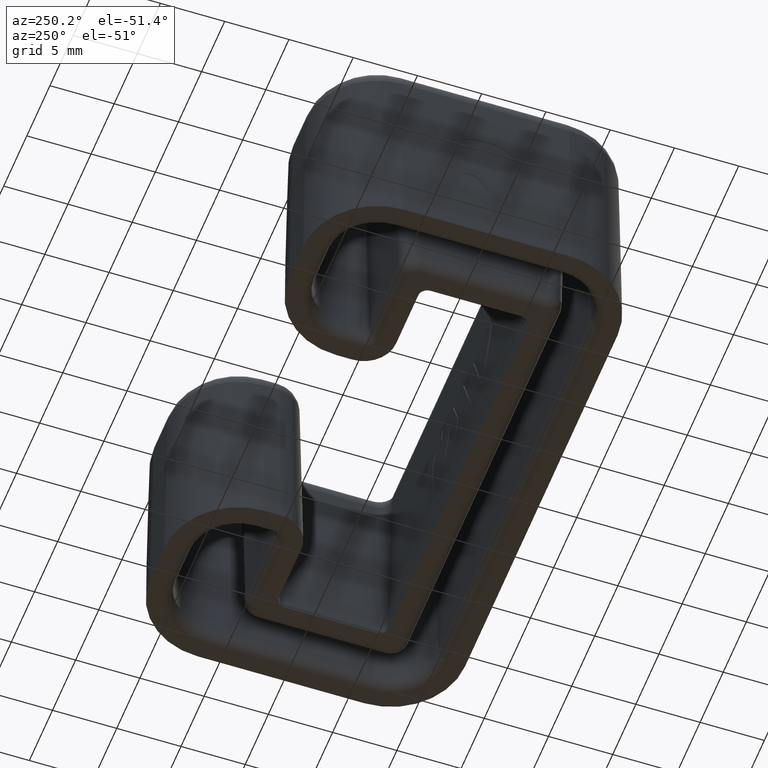
[diagram: clean part render]
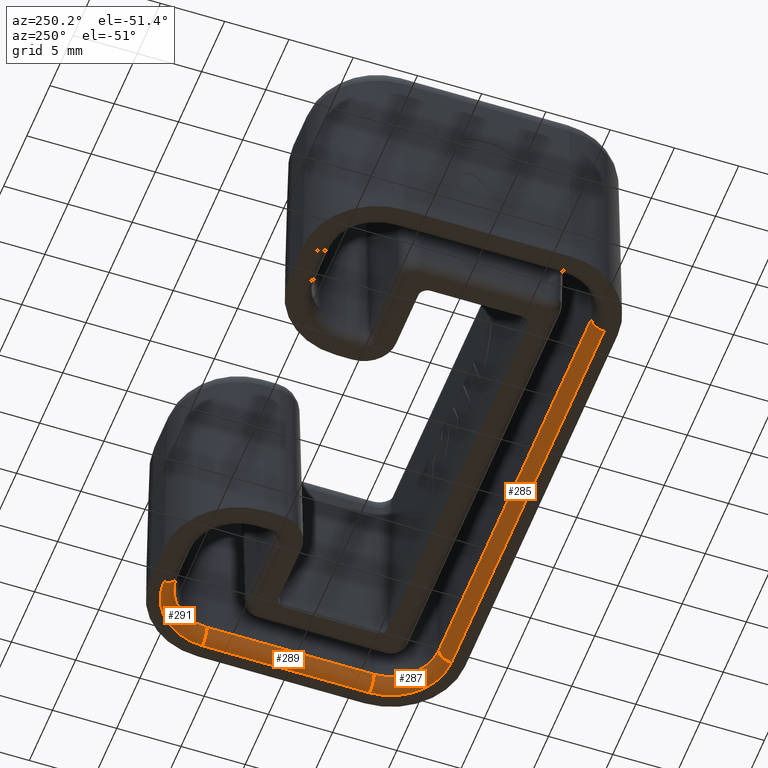
[diagram: same view with one multi-face feature highlighted, each face labeled with its STEP entity id]
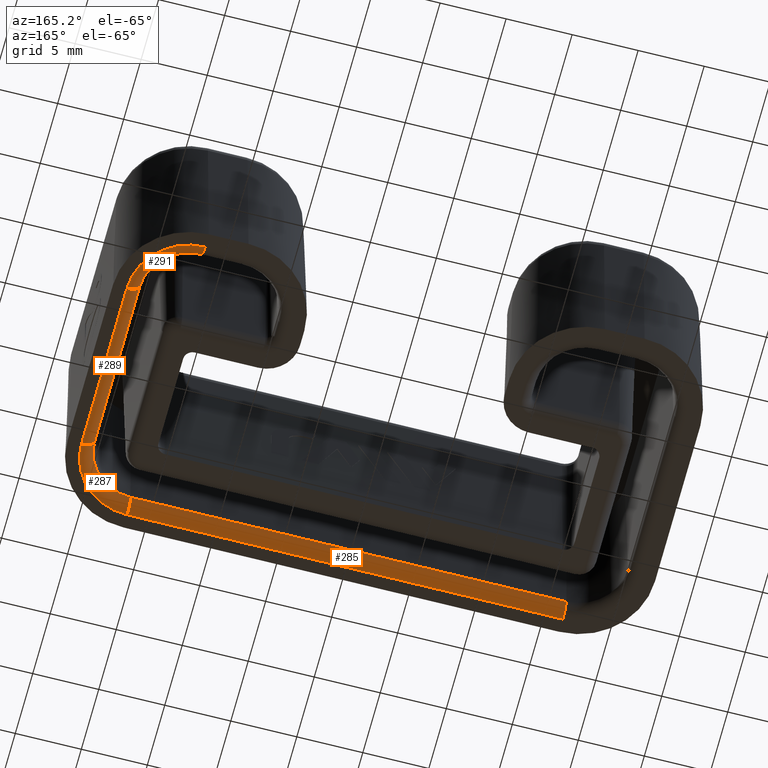
[diagram: same view with one multi-face feature highlighted, each face labeled with its STEP entity id]
A machine part, auxiliary view. The highlighted faces form ONE feature: a constant-radius fillet chain: 4 tangent blend faces with common blend radius 1 mm. The faces share edges in the B-rep.
A second angle (auxiliary view) of the same feature is appended — it is thin or edge-on in the first view.
Their STEP definitions:
[1] entity #291 (Torus):
#291=ADVANCED_FACE('',(#624),#625,.T.);
#624=FACE_OUTER_BOUND('',#1029,.T.);
#625=TOROIDAL_SURFACE('',#1030,4.69452323703918,1.0);
#1029=EDGE_LOOP('',(#2411,#2412,#2413,#2414));
#1030=AXIS2_PLACEMENT_3D('',#2415,#2416,#2417);
#2411=ORIENTED_EDGE('',*,*,#3065,.T.);
#2412=ORIENTED_EDGE('',*,*,#2914,.F.);
#2413=ORIENTED_EDGE('',*,*,#3061,.F.);
#2414=ORIENTED_EDGE('',*,*,#3066,.F.);
#2415=CARTESIAN_POINT('',(16.5,16.5,1.0));
#2416=DIRECTION('',(0.0,0.0,-1.0));
#2417=DIRECTION('',(-1.0,0.0,0.0));
#2914=EDGE_CURVE('',#3490,#3492,#3493,.F.);
#3061=EDGE_CURVE('',#3730,#3490,#3731,.T.);
#3065=EDGE_CURVE('',#3736,#3492,#3737,.T.);
#3066=EDGE_CURVE('',#3736,#3730,#3738,.T.);
#3490=VERTEX_POINT('',#4978);
#3492=VERTEX_POINT('',#4981);
#3493=CIRCLE('',#4982,4.69452323703918);
#3730=VERTEX_POINT('',#5289);
#3731=CIRCLE('',#5290,1.0);
#3736=VERTEX_POINT('',#5297);
#3737=CIRCLE('',#5298,1.0);
#3738=CIRCLE('',#5299,3.69467554188279);
#4978=CARTESIAN_POINT('',(21.194523237039,16.5,0.0));
#4981=CARTESIAN_POINT('',(16.5,21.1945232370392,0.0));
#4982=AXIS2_PLACEMENT_3D('',#5612,#5613,#5614);
#5289=CARTESIAN_POINT('',(20.1946755418826,16.5,0.982547593562718));
#5290=AXIS2_PLACEMENT_3D('',#5913,#5914,#5915);
#5297=CARTESIAN_POINT('',(16.5,20.1946755418827,0.982547593562718));
#5298=AXIS2_PLACEMENT_3D('',#5921,#5922,#5923);
#5299=AXIS2_PLACEMENT_3D('',#5924,#5925,#5926);
#5612=CARTESIAN_POINT('',(16.5,16.5,0.0));
#5613=DIRECTION('',(0.0,0.0,-1.0));
#5614=DIRECTION('',(-1.0,0.0,0.0));
#5913=CARTESIAN_POINT('',(21.1945232370392,16.5,1.0));
#5914=DIRECTION('',(0.0,-1.0,0.0));
#5915=DIRECTION('',(0.0,0.0,-1.0));
#5921=CARTESIAN_POINT('',(16.5,21.194523237039,1.0));
#5922=DIRECTION('',(1.0,0.0,0.0));
#5923=DIRECTION('',(0.0,0.0,-1.0));
#5924=CARTESIAN_POINT('',(16.5,16.5,0.982547593562717));
#5925=DIRECTION('',(0.0,0.0,-1.0));
#5926=DIRECTION('',(-1.0,0.0,0.0));
[2] entity #289 (Cylinder):
#289=ADVANCED_FACE('',(#620),#621,.T.);
#620=FACE_OUTER_BOUND('',#1025,.T.);
#621=CYLINDRICAL_SURFACE('',#1026,1.0);
#1025=EDGE_LOOP('',(#2397,#2398,#2399,#2400));
#1026=AXIS2_PLACEMENT_3D('',#2401,#2402,#2403);
#2397=ORIENTED_EDGE('',*,*,#3061,.T.);
#2398=ORIENTED_EDGE('',*,*,#2913,.F.);
#2399=ORIENTED_EDGE('',*,*,#3057,.F.);
#2400=ORIENTED_EDGE('',*,*,#3062,.F.);
#2401=CARTESIAN_POINT('',(21.194523237039,4.95,1.0));
#2402=DIRECTION('',(0.0,-1.0,0.0));
#2403=DIRECTION('',(0.0,0.0,1.0));
#2913=EDGE_CURVE('',#3488,#3490,#3491,.F.);
#3057=EDGE_CURVE('',#3724,#3488,#3725,.T.);
#3061=EDGE_CURVE('',#3730,#3490,#3731,.T.);
#3062=EDGE_CURVE('',#3730,#3724,#3732,.F.);
#3488=VERTEX_POINT('',#4976);
#3490=VERTEX_POINT('',#4978);
#3491=LINE('',#4979,#4980);
#3724=VERTEX_POINT('',#5283);
#3725=CIRCLE('',#5284,1.0);
#3730=VERTEX_POINT('',#5289);
#3731=CIRCLE('',#5290,1.0);
#3732=LINE('',#5291,#5292);
#4976=CARTESIAN_POINT('',(21.1945232370389,3.5,0.0));
#4978=CARTESIAN_POINT('',(21.194523237039,16.5,0.0));
#4979=CARTESIAN_POINT('',(21.194523237039,16.5,0.0));
#4980=VECTOR('',#5611,1000.0);
#5283=CARTESIAN_POINT('',(20.1946755418825,3.5,0.982547593562718));
#5284=AXIS2_PLACEMENT_3D('',#5901,#5902,#5903);
#5289=CARTESIAN_POINT('',(20.1946755418826,16.5,0.982547593562718));
#5290=AXIS2_PLACEMENT_3D('',#5913,#5914,#5915);
#5291=CARTESIAN_POINT('',(20.1946755418826,3.5,0.982547593562716));
#5292=VECTOR('',#5916,1000.0);
#5611=DIRECTION('',(0.0,-1.0,0.0));
#5901=CARTESIAN_POINT('',(21.194523237039,3.5,1.0));
#5902=DIRECTION('',(0.0,-1.0,0.0));
#5903=DIRECTION('',(0.0,0.0,-1.0));
#5913=CARTESIAN_POINT('',(21.1945232370392,16.5,1.0));
#5914=DIRECTION('',(0.0,-1.0,0.0));
#5915=DIRECTION('',(0.0,0.0,-1.0));
#5916=DIRECTION('',(0.0,1.0,0.0));
[3] entity #287 (Torus):
#287=ADVANCED_FACE('',(#616),#617,.T.);
#616=FACE_OUTER_BOUND('',#1021,.T.);
#617=TOROIDAL_SURFACE('',#1022,4.69452323703896,1.0);
#1021=EDGE_LOOP('',(#2383,#2384,#2385,#2386));
#1022=AXIS2_PLACEMENT_3D('',#2387,#2388,#2389);
#2383=ORIENTED_EDGE('',*,*,#3057,.T.);
#2384=ORIENTED_EDGE('',*,*,#2912,.F.);
#2385=ORIENTED_EDGE('',*,*,#3053,.F.);
#2386=ORIENTED_EDGE('',*,*,#3058,.F.);
#2387=CARTESIAN_POINT('',(16.5,3.5,1.0));
#2388=DIRECTION('',(0.0,0.0,-1.0));
#2389=DIRECTION('',(-1.0,0.0,0.0));
#2912=EDGE_CURVE('',#3486,#3488,#3489,.F.);
#3053=EDGE_CURVE('',#3718,#3486,#3719,.T.);
#3057=EDGE_CURVE('',#3724,#3488,#3725,.T.);
#3058=EDGE_CURVE('',#3724,#3718,#3726,.T.);
#3486=VERTEX_POINT('',#4973);
#3488=VERTEX_POINT('',#4976);
#3489=CIRCLE('',#4977,4.69452323703896);
#3718=VERTEX_POINT('',#5275);
#3719=CIRCLE('',#5276,1.0);
#3724=VERTEX_POINT('',#5283);
#3725=CIRCLE('',#5284,1.0);
#3726=CIRCLE('',#5285,3.69467554188257);
#4973=CARTESIAN_POINT('',(16.5,-1.19452323703895,0.0));
#4976=CARTESIAN_POINT('',(21.1945232370389,3.5,0.0));
#4977=AXIS2_PLACEMENT_3D('',#5608,#5609,#5610);
#5275=CARTESIAN_POINT('',(16.5,-0.194675541882563,0.982547593562718));
#5276=AXIS2_PLACEMENT_3D('',#5893,#5894,#5895);
#5283=CARTESIAN_POINT('',(20.1946755418825,3.5,0.982547593562718));
#5284=AXIS2_PLACEMENT_3D('',#5901,#5902,#5903);
#5285=AXIS2_PLACEMENT_3D('',#5904,#5905,#5906);
#5608=CARTESIAN_POINT('',(16.5,3.5,0.0));
#5609=DIRECTION('',(0.0,0.0,-1.0));
#5610=DIRECTION('',(-1.0,0.0,0.0));
#5893=CARTESIAN_POINT('',(16.5,-1.19452323703893,1.0));
#5894=DIRECTION('',(-1.0,0.0,0.0));
#5895=DIRECTION('',(0.0,0.0,1.0));
#5901=CARTESIAN_POINT('',(21.194523237039,3.5,1.0));
#5902=DIRECTION('',(0.0,-1.0,0.0));
#5903=DIRECTION('',(0.0,0.0,-1.0));
#5904=CARTESIAN_POINT('',(16.5,3.5,0.982547593562717));
#5905=DIRECTION('',(0.0,0.0,-1.0));
#5906=DIRECTION('',(-1.0,0.0,0.0));
[4] entity #285 (Cylinder):
#285=ADVANCED_FACE('',(#612),#613,.T.);
#612=FACE_OUTER_BOUND('',#1017,.T.);
#613=CYLINDRICAL_SURFACE('',#1018,1.0);
#1017=EDGE_LOOP('',(#2369,#2370,#2371,#2372));
#1018=AXIS2_PLACEMENT_3D('',#2373,#2374,#2375);
#2369=ORIENTED_EDGE('',*,*,#3053,.T.);
#2370=ORIENTED_EDGE('',*,*,#2911,.F.);
#2371=ORIENTED_EDGE('',*,*,#3052,.F.);
#2372=ORIENTED_EDGE('',*,*,#3054,.F.);
#2373=CARTESIAN_POINT('',(15.05,-1.19452323703895,1.0));
#2374=DIRECTION('',(-1.0,-0.0,-0.0));
#2375=DIRECTION('',(0.0,0.0,-1.0));
#2911=EDGE_CURVE('',#3484,#3486,#3487,.F.);
#3052=EDGE_CURVE('',#3715,#3484,#3717,.T.);
#3053=EDGE_CURVE('',#3718,#3486,#3719,.T.);
#3054=EDGE_CURVE('',#3718,#3715,#3720,.F.);
#3484=VERTEX_POINT('',#4971);
#3486=VERTEX_POINT('',#4973);
#3487=LINE('',#4974,#4975);
#3715=VERTEX_POINT('',#5272);
#3717=CIRCLE('',#5274,1.0);
#3718=VERTEX_POINT('',#5275);
#3719=CIRCLE('',#5276,1.0);
#3720=LINE('',#5277,#5278);
#4971=CARTESIAN_POINT('',(-16.5,-1.19452323703895,0.0));
#4973=CARTESIAN_POINT('',(16.5,-1.19452323703895,0.0));
#4974=CARTESIAN_POINT('',(16.5,-1.19452323703895,0.0));
#4975=VECTOR('',#5607,1000.0);
#5272=CARTESIAN_POINT('',(-16.5,-0.194675541882575,0.982547593562718));
#5274=AXIS2_PLACEMENT_3D('',#5890,#5891,#5892);
#5275=CARTESIAN_POINT('',(16.5,-0.194675541882563,0.982547593562718));
#5276=AXIS2_PLACEMENT_3D('',#5893,#5894,#5895);
#5277=CARTESIAN_POINT('',(-16.5,-0.194675541882563,0.982547593562716));
#5278=VECTOR('',#5896,1000.0);
#5607=DIRECTION('',(-1.0,0.0,0.0));
#5890=CARTESIAN_POINT('',(-16.5,-1.19452323703895,1.0));
#5891=DIRECTION('',(-1.0,0.0,0.0));
#5892=DIRECTION('',(0.0,0.0,1.0));
#5893=CARTESIAN_POINT('',(16.5,-1.19452323703893,1.0));
#5894=DIRECTION('',(-1.0,0.0,0.0));
#5895=DIRECTION('',(0.0,0.0,1.0));
#5896=DIRECTION('',(1.0,0.0,0.0));